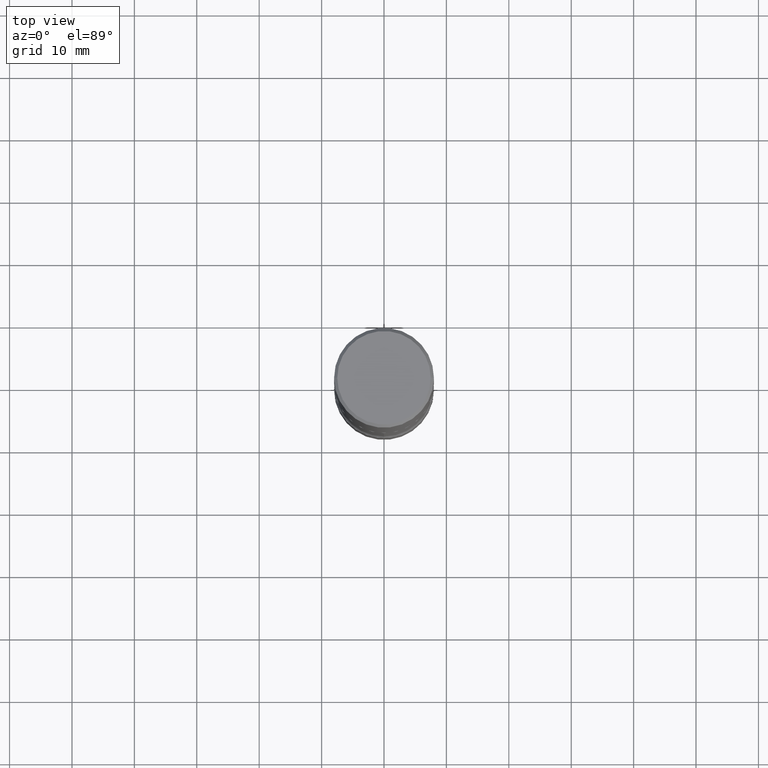
[diagram: clean part render]
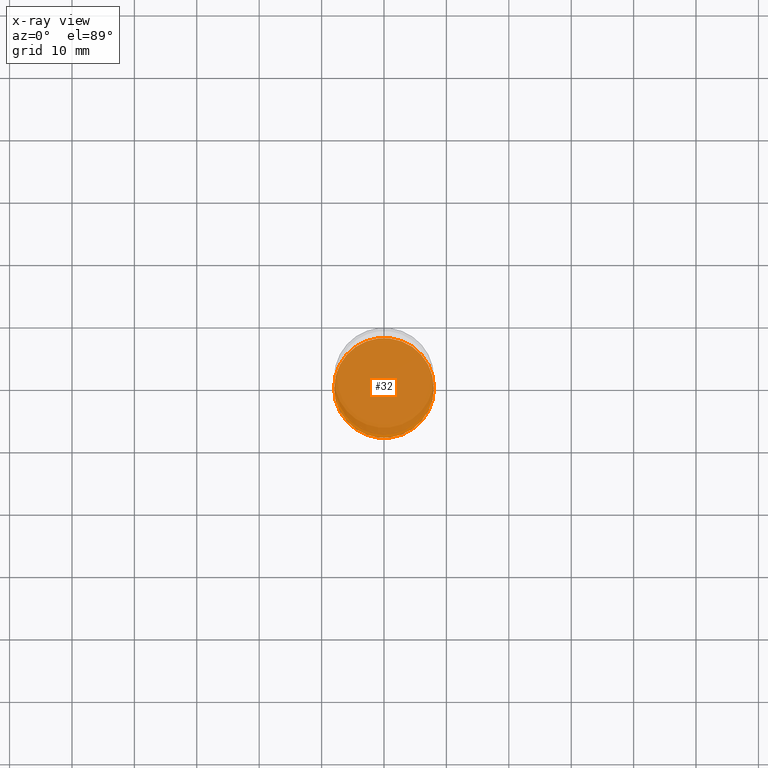
[diagram: x-ray — body ghosted, one internal face saturated and labeled with its STEP entity id]
A machine part, top view, then the same camera in x-ray: the body is ghosted and one INTERNAL B-rep face — a face not visible from any outside direction — is saturated and labeled: STEP entity #32.
In plain terms, the highlighted planar face has unit normal (0, -0, -1).
Its self-contained STEP definition (entity closure, byte-faithful):
#6 = CARTESIAN_POINT ( 'NONE',  ( 4.615694768568605168E-29, -1.954727023296045315E-14, -3.740200000000000635 ) ) ;
#8 = CARTESIAN_POINT ( 'NONE',  ( 9.146542428893650504E-29, -1.305883850354113594E-14, -3.740200000000000635 ) ) ;
#32 = ADVANCED_FACE ( 'NONE', ( #145 ), #174, .F. ) ;
#56 = CIRCLE ( 'NONE', #370, 0.3149500000000002298 ) ;
#83 = CIRCLE ( 'NONE', #403, 0.3149500000000002298 ) ;
#88 = EDGE_CURVE ( 'NONE', #470, #287, #83, .T. ) ;
#102 = EDGE_CURVE ( 'NONE', #287, #470, #56, .T. ) ;
#145 = FACE_OUTER_BOUND ( 'NONE', #216, .T. ) ;
#173 = DIRECTION ( 'NONE',  ( -2.445468806185136597E-29, 3.491481338843145583E-15, 1.000000000000000000 ) ) ;
#174 = PLANE ( 'NONE',  #449 ) ;
#182 = DIRECTION ( 'NONE',  ( 2.438088387897960049E-29, -3.491481338843145188E-15, -1.000000000000000000 ) ) ;
#185 = DIRECTION ( 'NONE',  ( 1.000000000000000000, -6.982962677686264344E-15, 0.000000000000000000 ) ) ;
#205 = ORIENTED_EDGE ( 'NONE', *, *, #102, .T. ) ;
#216 = EDGE_LOOP ( 'NONE', ( #405, #205 ) ) ;
#287 = VERTEX_POINT ( 'NONE', #541 ) ;
#349 = DIRECTION ( 'NONE',  ( -2.445468806185136597E-29, 3.491481338843145583E-15, 1.000000000000000000 ) ) ;
#370 = AXIS2_PLACEMENT_3D ( 'NONE', #8, #173, #185 ) ;
#391 = CARTESIAN_POINT ( 'NONE',  ( 0.3149500000000002298, -1.525812259887842581E-14, -3.740200000000000635 ) ) ;
#403 = AXIS2_PLACEMENT_3D ( 'NONE', #494, #349, #560 ) ;
#405 = ORIENTED_EDGE ( 'NONE', *, *, #88, .T. ) ;
#445 = DIRECTION ( 'NONE',  ( -1.000000000000000000, 6.982962677686265922E-15, -4.876176775795935793E-29 ) ) ;
#449 = AXIS2_PLACEMENT_3D ( 'NONE', #6, #182, #445 ) ;
#470 = VERTEX_POINT ( 'NONE', #391 ) ;
#494 = CARTESIAN_POINT ( 'NONE',  ( 9.146542428893650504E-29, -1.305883850354113594E-14, -3.740200000000000635 ) ) ;
#541 = CARTESIAN_POINT ( 'NONE',  ( -0.3149500000000002298, -1.198940838730855845E-14, -3.740200000000000635 ) ) ;
#560 = DIRECTION ( 'NONE',  ( 1.000000000000000000, -6.982962677686264344E-15, 0.000000000000000000 ) ) ;